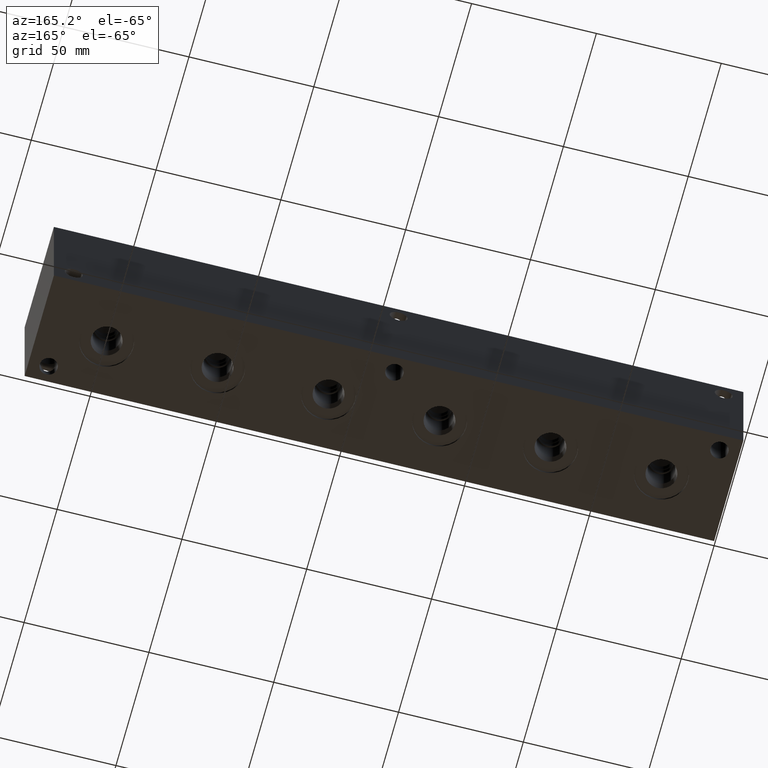
[diagram: clean part render]
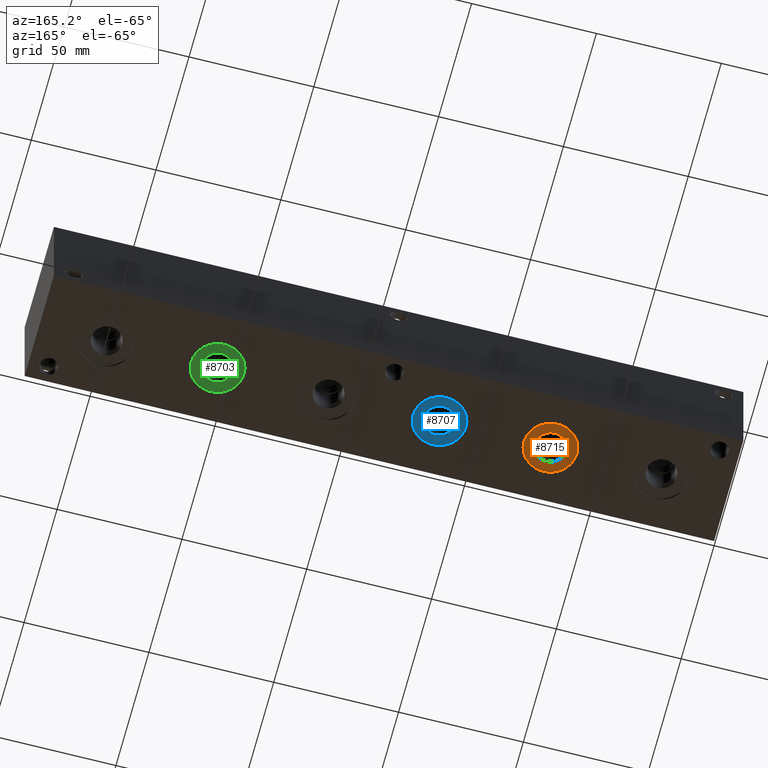
[diagram: same view with three faces highlighted in distinct colors, each labeled with its STEP entity id]
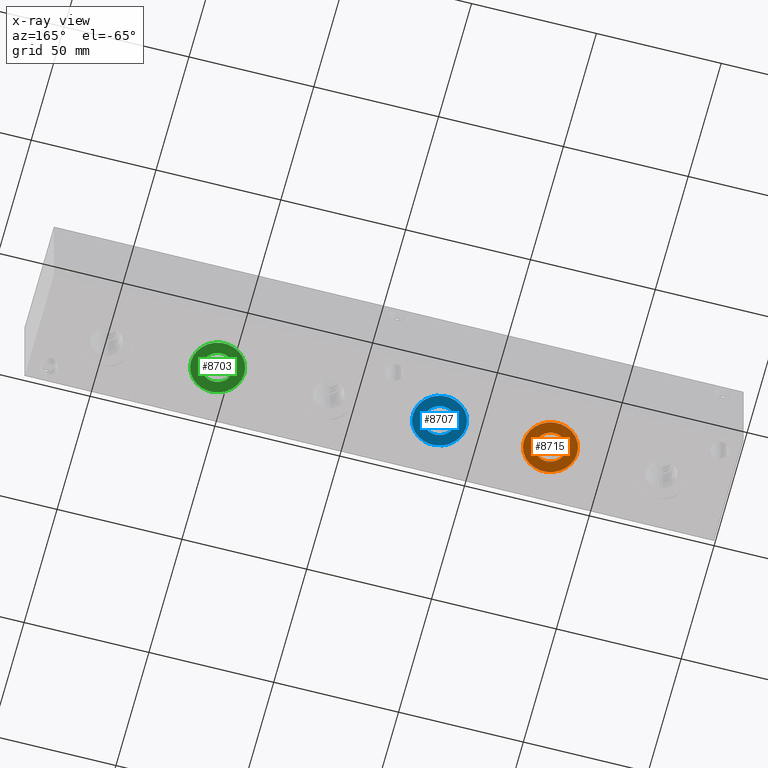
[diagram: x-ray of the same camera — body ghosted, the three highlighted faces saturated]
A machine part, auxiliary view with three faces highlighted in distinct colors.
The next image is the same camera in x-ray (body ghosted, the three faces saturated) — at least one of them is partly hidden behind the body in this view.
Their STEP definitions:

[orange] entity #8715 — the highlighted planar face has unit normal (0, 0, -1).
#266=CIRCLE('',#9221,10.6426);
#267=CIRCLE('',#9222,10.6426);
#268=CIRCLE('',#9223,6.1976);
#420=FACE_BOUND('',#1579,.T.);
#668=PLANE('',#9220);
#1069=FACE_OUTER_BOUND('',#1578,.T.);
#1578=EDGE_LOOP('',(#7526,#7527));
#1579=EDGE_LOOP('',(#7528));
#4147=VERTEX_POINT('',#14862);
#4148=VERTEX_POINT('',#14863);
#4149=VERTEX_POINT('',#14866);
#5305=EDGE_CURVE('',#4147,#4148,#266,.T.);
#5306=EDGE_CURVE('',#4148,#4147,#267,.T.);
#5307=EDGE_CURVE('',#4149,#4149,#268,.T.);
#7526=ORIENTED_EDGE('',*,*,#5305,.T.);
#7527=ORIENTED_EDGE('',*,*,#5306,.T.);
#7528=ORIENTED_EDGE('',*,*,#5307,.F.);
#8715=ADVANCED_FACE('',(#1069,#420),#668,.T.);
#9220=AXIS2_PLACEMENT_3D('',#14861,#10935,#10936);
#9221=AXIS2_PLACEMENT_3D('',#14864,#10937,#10938);
#9222=AXIS2_PLACEMENT_3D('',#14865,#10939,#10940);
#9223=AXIS2_PLACEMENT_3D('',#14867,#10941,#10942);
#10935=DIRECTION('center_axis',(0.,0.,-1.));
#10936=DIRECTION('ref_axis',(1.,0.,0.));
#10937=DIRECTION('center_axis',(0.,0.,-1.));
#10938=DIRECTION('ref_axis',(1.,0.,0.));
#10939=DIRECTION('center_axis',(0.,0.,-1.));
#10940=DIRECTION('ref_axis',(1.,0.,0.));
#10941=DIRECTION('center_axis',(0.,0.,-1.));
#10942=DIRECTION('ref_axis',(1.,0.,0.));
#14861=CARTESIAN_POINT('Origin',(71.4248,22.225,0.7874));
#14862=CARTESIAN_POINT('',(82.0674,22.225,0.7874));
#14863=CARTESIAN_POINT('',(60.7822,22.225,0.7874));
#14864=CARTESIAN_POINT('Origin',(71.4248,22.225,0.7874));
#14865=CARTESIAN_POINT('Origin',(71.4248,22.225,0.7874));
#14866=CARTESIAN_POINT('',(65.2272,22.225,0.7874));
#14867=CARTESIAN_POINT('Origin',(71.4248,22.225,0.7874));

[blue] entity #8707 — the highlighted planar face has unit normal (0, 0, -1).
#254=CIRCLE('',#9201,10.6426);
#255=CIRCLE('',#9202,10.6426);
#256=CIRCLE('',#9203,6.1976);
#418=FACE_BOUND('',#1569,.T.);
#666=PLANE('',#9200);
#1061=FACE_OUTER_BOUND('',#1568,.T.);
#1568=EDGE_LOOP('',(#7490,#7491));
#1569=EDGE_LOOP('',(#7492));
#4135=VERTEX_POINT('',#14824);
#4136=VERTEX_POINT('',#14825);
#4137=VERTEX_POINT('',#14828);
#5287=EDGE_CURVE('',#4135,#4136,#254,.T.);
#5288=EDGE_CURVE('',#4136,#4135,#255,.T.);
#5289=EDGE_CURVE('',#4137,#4137,#256,.T.);
#7490=ORIENTED_EDGE('',*,*,#5287,.T.);
#7491=ORIENTED_EDGE('',*,*,#5288,.T.);
#7492=ORIENTED_EDGE('',*,*,#5289,.F.);
#8707=ADVANCED_FACE('',(#1061,#418),#666,.T.);
#9200=AXIS2_PLACEMENT_3D('',#14823,#10889,#10890);
#9201=AXIS2_PLACEMENT_3D('',#14826,#10891,#10892);
#9202=AXIS2_PLACEMENT_3D('',#14827,#10893,#10894);
#9203=AXIS2_PLACEMENT_3D('',#14829,#10895,#10896);
#10889=DIRECTION('center_axis',(0.,0.,-1.));
#10890=DIRECTION('ref_axis',(1.,0.,0.));
#10891=DIRECTION('center_axis',(0.,0.,-1.));
#10892=DIRECTION('ref_axis',(1.,0.,0.));
#10893=DIRECTION('center_axis',(0.,0.,-1.));
#10894=DIRECTION('ref_axis',(1.,0.,0.));
#10895=DIRECTION('center_axis',(0.,0.,-1.));
#10896=DIRECTION('ref_axis',(1.,0.,0.));
#14823=CARTESIAN_POINT('Origin',(115.8748,22.225,0.7874));
#14824=CARTESIAN_POINT('',(126.5174,22.225,0.7874));
#14825=CARTESIAN_POINT('',(105.2322,22.225,0.7874));
#14826=CARTESIAN_POINT('Origin',(115.8748,22.225,0.7874));
#14827=CARTESIAN_POINT('Origin',(115.8748,22.225,0.7874));
#14828=CARTESIAN_POINT('',(109.6772,22.225,0.7874));
#14829=CARTESIAN_POINT('Origin',(115.8748,22.225,0.7874));

[green] entity #8703 — the highlighted planar face has unit normal (0, 0, -1).
#248=CIRCLE('',#9191,10.6426);
#249=CIRCLE('',#9192,10.6426);
#250=CIRCLE('',#9193,6.1976);
#417=FACE_BOUND('',#1564,.T.);
#665=PLANE('',#9190);
#1057=FACE_OUTER_BOUND('',#1563,.T.);
#1563=EDGE_LOOP('',(#7472,#7473));
#1564=EDGE_LOOP('',(#7474));
#4129=VERTEX_POINT('',#14805);
#4130=VERTEX_POINT('',#14806);
#4131=VERTEX_POINT('',#14809);
#5278=EDGE_CURVE('',#4129,#4130,#248,.T.);
#5279=EDGE_CURVE('',#4130,#4129,#249,.T.);
#5280=EDGE_CURVE('',#4131,#4131,#250,.T.);
#7472=ORIENTED_EDGE('',*,*,#5278,.T.);
#7473=ORIENTED_EDGE('',*,*,#5279,.T.);
#7474=ORIENTED_EDGE('',*,*,#5280,.F.);
#8703=ADVANCED_FACE('',(#1057,#417),#665,.T.);
#9190=AXIS2_PLACEMENT_3D('',#14804,#10866,#10867);
#9191=AXIS2_PLACEMENT_3D('',#14807,#10868,#10869);
#9192=AXIS2_PLACEMENT_3D('',#14808,#10870,#10871);
#9193=AXIS2_PLACEMENT_3D('',#14810,#10872,#10873);
#10866=DIRECTION('center_axis',(0.,0.,-1.));
#10867=DIRECTION('ref_axis',(1.,0.,0.));
#10868=DIRECTION('center_axis',(0.,0.,-1.));
#10869=DIRECTION('ref_axis',(1.,0.,0.));
#10870=DIRECTION('center_axis',(0.,0.,-1.));
#10871=DIRECTION('ref_axis',(1.,0.,0.));
#10872=DIRECTION('center_axis',(0.,0.,-1.));
#10873=DIRECTION('ref_axis',(1.,0.,0.));
#14804=CARTESIAN_POINT('Origin',(204.7748,22.225,0.7874));
#14805=CARTESIAN_POINT('',(215.4174,22.225,0.7874));
#14806=CARTESIAN_POINT('',(194.1322,22.225,0.7874));
#14807=CARTESIAN_POINT('Origin',(204.7748,22.225,0.7874));
#14808=CARTESIAN_POINT('Origin',(204.7748,22.225,0.7874));
#14809=CARTESIAN_POINT('',(198.5772,22.225,0.7874));
#14810=CARTESIAN_POINT('Origin',(204.7748,22.225,0.7874));